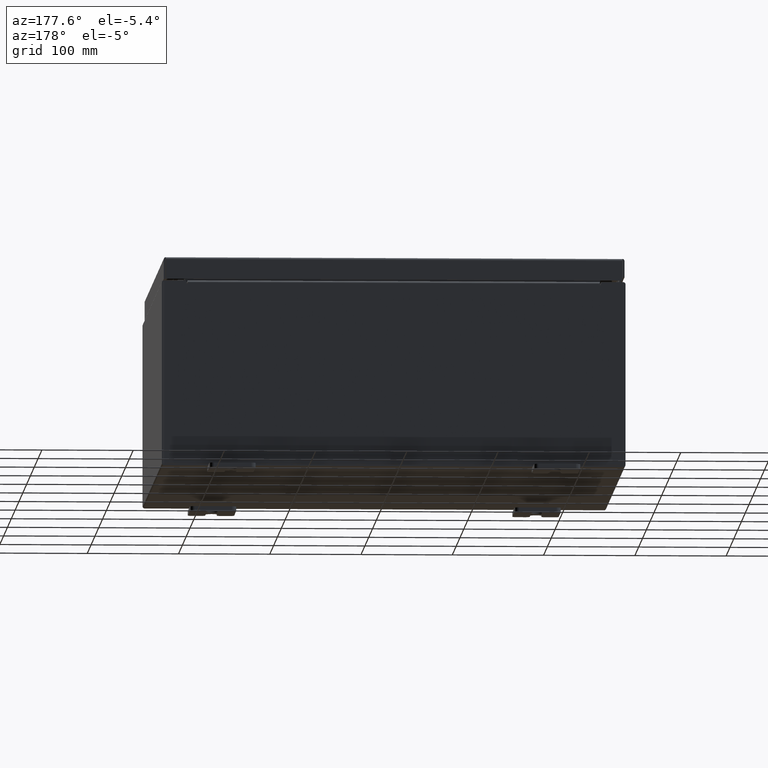
[diagram: clean part render]
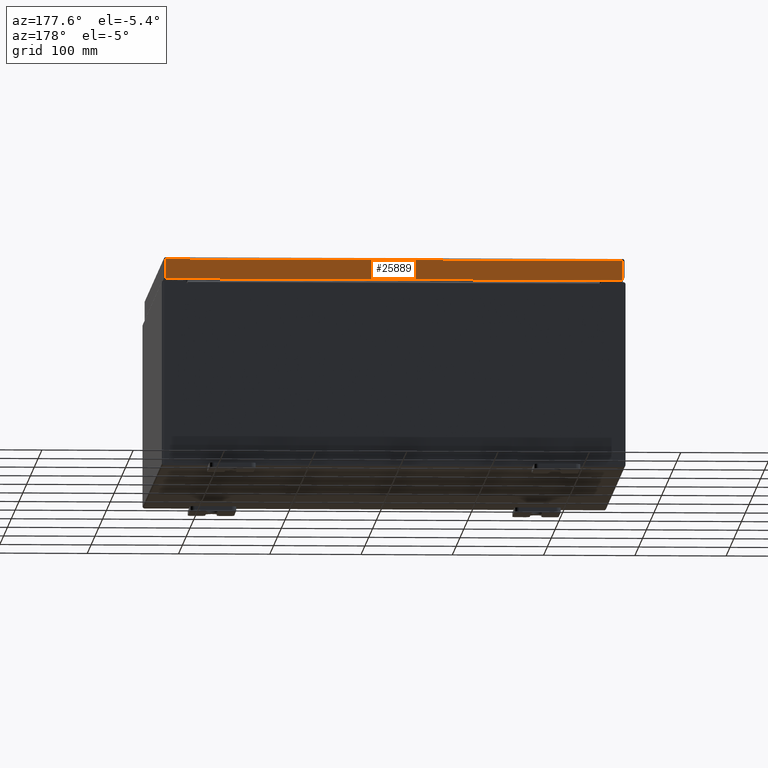
[diagram: same view with one face highlighted and labeled with its STEP entity id]
A machine part, auxiliary view. The second image highlights one B-rep face of the part: STEP entity #25889.
In plain terms, the highlighted planar face has unit normal (0, -1, -0).
Its self-contained STEP definition (entity closure, byte-faithful):
#1432 = CARTESIAN_POINT ( 'NONE',  ( 9.848657864376265900, 9.937500000000000000, -0.9376999999999997600 ) ) ;
#1745 = VERTEX_POINT ( 'NONE', #54668 ) ;
#3836 = ORIENTED_EDGE ( 'NONE', *, *, #12047, .F. ) ;
#4467 = CARTESIAN_POINT ( 'NONE',  ( -9.848657864376269400, 9.937499999999998200, -0.07469999999999980800 ) ) ;
#6300 = CARTESIAN_POINT ( 'NONE',  ( 9.848657864376265900, 9.937499999999998200, -0.08770000000000008300 ) ) ;
#6701 = CARTESIAN_POINT ( 'NONE',  ( -3.113183830562546900E-030, 9.937499999999998200, 2.542673665674255300E-014 ) ) ;
#9203 = AXIS2_PLACEMENT_3D ( 'NONE', #6701, #45965, #16564 ) ;
#9654 = EDGE_CURVE ( 'NONE', #46598, #40311, #11522, .T. ) ;
#9907 = LINE ( 'NONE', #4467, #47550 ) ;
#10326 = VECTOR ( 'NONE', #61837, 39.37007874015748100 ) ;
#11522 = LINE ( 'NONE', #33796, #48445 ) ;
#12047 = EDGE_CURVE ( 'NONE', #1745, #46598, #9907, .T. ) ;
#12944 = CARTESIAN_POINT ( 'NONE',  ( 9.848657864376265900, 9.937499999999998200, 2.542673665674255300E-014 ) ) ;
#16564 = DIRECTION ( 'NONE',  ( 0.0000000000000000000, 2.532419924601859000E-015, -1.000000000000000000 ) ) ;
#18734 = ORIENTED_EDGE ( 'NONE', *, *, #9654, .F. ) ;
#21285 = PLANE ( 'NONE',  #9203 ) ;
#22726 = EDGE_CURVE ( 'NONE', #35713, #40311, #47953, .T. ) ;
#22953 = VECTOR ( 'NONE', #38826, 39.37007874015748100 ) ;
#25823 = EDGE_LOOP ( 'NONE', ( #61094, #52824, #18734, #3836 ) ) ;
#25889 = ADVANCED_FACE ( 'NONE', ( #56187 ), #21285, .F. ) ;
#28841 = DIRECTION ( 'NONE',  ( 1.000000000000000000, -4.379057701015054300E-047, 1.237063242414006500E-016 ) ) ;
#33796 = CARTESIAN_POINT ( 'NONE',  ( -9.937500000000000000, 9.937500000000000000, -0.9377000000000023100 ) ) ;
#34749 = EDGE_CURVE ( 'NONE', #35713, #1745, #47529, .T. ) ;
#35713 = VERTEX_POINT ( 'NONE', #6300 ) ;
#38826 = DIRECTION ( 'NONE',  ( -1.000000000000000000, -3.132763603081809300E-031, -7.843572268217971900E-046 ) ) ;
#40311 = VERTEX_POINT ( 'NONE', #1432 ) ;
#43736 = DIRECTION ( 'NONE',  ( -0.0000000000000000000, 2.532419924601859000E-015, -1.000000000000000000 ) ) ;
#43744 = CARTESIAN_POINT ( 'NONE',  ( -9.937500000000000000, 9.937499999999998200, -0.08770000000000008300 ) ) ;
#45965 = DIRECTION ( 'NONE',  ( 3.132763603081808900E-031, -1.000000000000000000, -2.532419924601859000E-015 ) ) ;
#46598 = VERTEX_POINT ( 'NONE', #47406 ) ;
#47406 = CARTESIAN_POINT ( 'NONE',  ( -9.848657864376269400, 9.937500000000000000, -0.9377000000000023100 ) ) ;
#47529 = LINE ( 'NONE', #43744, #22953 ) ;
#47550 = VECTOR ( 'NONE', #43736, 39.37007874015748100 ) ;
#47953 = LINE ( 'NONE', #12944, #10326 ) ;
#48445 = VECTOR ( 'NONE', #28841, 39.37007874015748100 ) ;
#52824 = ORIENTED_EDGE ( 'NONE', *, *, #22726, .T. ) ;
#54668 = CARTESIAN_POINT ( 'NONE',  ( -9.848657864376265900, 9.937499999999998200, -0.08770000000000008300 ) ) ;
#56187 = FACE_OUTER_BOUND ( 'NONE', #25823, .T. ) ;
#61094 = ORIENTED_EDGE ( 'NONE', *, *, #34749, .F. ) ;
#61837 = DIRECTION ( 'NONE',  ( 0.0000000000000000000, 2.532419924601859000E-015, -1.000000000000000000 ) ) ;